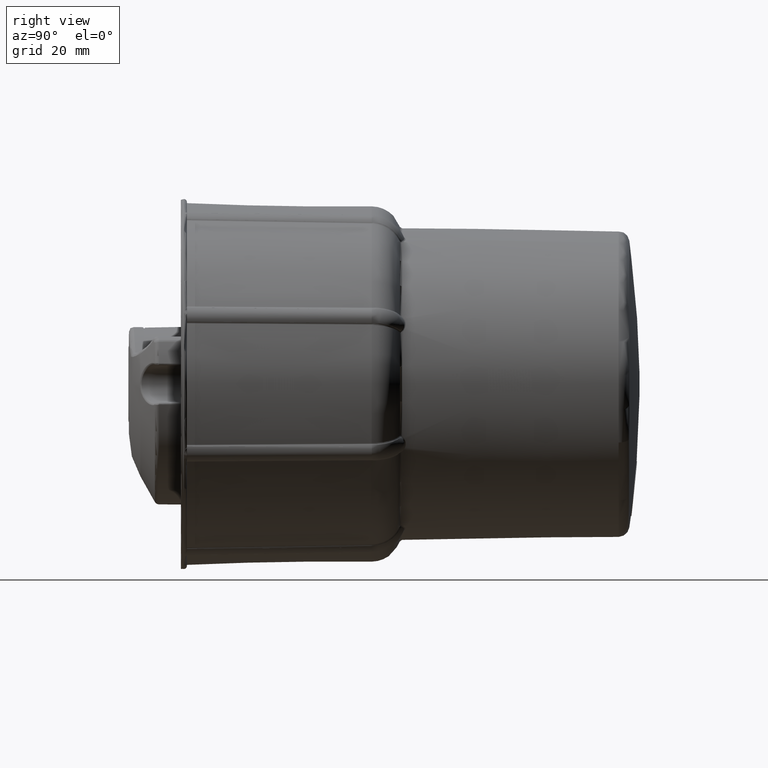
[diagram: clean part render]
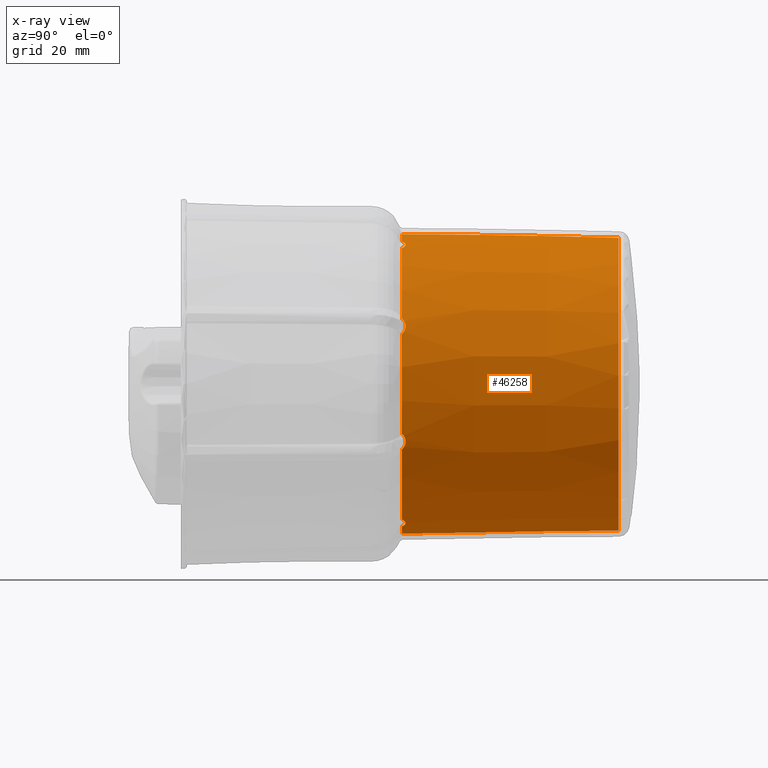
[diagram: x-ray — body ghosted, one internal face saturated and labeled with its STEP entity id]
A machine part, right view, then the same camera in x-ray: the body is ghosted and one INTERNAL B-rep face — a face not visible from any outside direction — is saturated and labeled: STEP entity #46258.
In plain terms, the highlighted conical surface has half-angle 1 deg.
Its self-contained STEP definition (entity closure, byte-faithful):
#308=CONICAL_SURFACE('',#50217,29.8448661211049,0.0174532925199435);
#5309=LINE('',#94508,#8653);
#8653=VECTOR('',#61009,29.8448661211049);
#11603=FACE_OUTER_BOUND('',#14287,.T.);
#14287=EDGE_LOOP('',(#41299,#41300,#41301,#41302,#41303,#41304,#41305,#41306,
#41307,#41308,#41309,#41310,#41311,#41312,#41313,#41314,#41315,#41316,#41317,
#41318,#41319));
#16032=CIRCLE('',#50218,30.2239014739771);
#16033=CIRCLE('',#50219,30.2239014739771);
#16034=CIRCLE('',#50220,30.2239014739771);
#16035=CIRCLE('',#50221,30.2239014739771);
#16036=CIRCLE('',#50222,29.4658307682327);
#16037=CIRCLE('',#50223,29.4658307682327);
#16038=CIRCLE('',#50224,30.2239014739771);
#16039=CIRCLE('',#50225,30.2239014739771);
#16040=CIRCLE('',#50226,30.2239014739771);
#16041=CIRCLE('',#50227,30.2239014739771);
#17552=B_SPLINE_CURVE_WITH_KNOTS('',3,(#94322,#94323,#94324,#94325,#94326,
#94327),.UNSPECIFIED.,.F.,.F.,(4,1,1,4),(0.00631704096053752,0.17305562028282,
0.284214673164341,0.395373726045862),.UNSPECIFIED.);
#17563=B_SPLINE_CURVE_WITH_KNOTS('',3,(#94478,#94479,#94480,#94481,#94482),
 .UNSPECIFIED.,.F.,.F.,(4,1,4),(0.00631704096053902,0.228635146723583,0.395373726045865),
 .UNSPECIFIED.);
#17564=B_SPLINE_CURVE_WITH_KNOTS('',3,(#94486,#94487,#94488,#94489,#94490),
 .UNSPECIFIED.,.F.,.F.,(4,1,4),(0.00631704096053734,0.228635146723583,0.395373726045868),
 .UNSPECIFIED.);
#17565=B_SPLINE_CURVE_WITH_KNOTS('',3,(#94494,#94495,#94496,#94497,#94498),
 .UNSPECIFIED.,.F.,.F.,(4,1,4),(0.006317040960538,0.228635146723582,0.395373726045865),
 .UNSPECIFIED.);
#17566=B_SPLINE_CURVE_WITH_KNOTS('',3,(#94502,#94503,#94504,#94505,#94506),
 .UNSPECIFIED.,.F.,.F.,(4,1,4),(0.201118664936219,0.228635146723581,0.395373726045865),
 .UNSPECIFIED.);
#17567=B_SPLINE_CURVE_WITH_KNOTS('',3,(#94513,#94514,#94515,#94516),
 .UNSPECIFIED.,.F.,.F.,(4,4),(0.00631704096053671,0.201118664936219),
 .UNSPECIFIED.);
#17568=B_SPLINE_CURVE_WITH_KNOTS('',3,(#94520,#94521,#94522,#94523,#94524),
 .UNSPECIFIED.,.F.,.F.,(4,1,4),(0.00631704096053866,0.228635146723584,0.395373726045868),
 .UNSPECIFIED.);
#17569=B_SPLINE_CURVE_WITH_KNOTS('',3,(#94528,#94529,#94530,#94531,#94532),
 .UNSPECIFIED.,.F.,.F.,(4,1,4),(0.00631704096053853,0.228635146723581,0.395373726045863),
 .UNSPECIFIED.);
#17570=B_SPLINE_CURVE_WITH_KNOTS('',3,(#94536,#94537,#94538,#94539,#94540),
 .UNSPECIFIED.,.F.,.F.,(4,1,4),(0.00631704096053801,0.228635146723583,0.395373726045867),
 .UNSPECIFIED.);
#21924=VERTEX_POINT('',#94279);
#21926=VERTEX_POINT('',#94320);
#21933=VERTEX_POINT('',#94475);
#21934=VERTEX_POINT('',#94477);
#21935=VERTEX_POINT('',#94483);
#21936=VERTEX_POINT('',#94485);
#21937=VERTEX_POINT('',#94491);
#21938=VERTEX_POINT('',#94493);
#21939=VERTEX_POINT('',#94499);
#21940=VERTEX_POINT('',#94501);
#21941=VERTEX_POINT('',#94507);
#21942=VERTEX_POINT('',#94509);
#21943=VERTEX_POINT('',#94512);
#21944=VERTEX_POINT('',#94517);
#21945=VERTEX_POINT('',#94519);
#21946=VERTEX_POINT('',#94525);
#21947=VERTEX_POINT('',#94527);
#21948=VERTEX_POINT('',#94533);
#21949=VERTEX_POINT('',#94535);
#28578=EDGE_CURVE('',#21926,#21924,#17552,.T.);
#28593=EDGE_CURVE('',#21926,#21933,#16032,.T.);
#28594=EDGE_CURVE('',#21934,#21933,#17563,.T.);
#28595=EDGE_CURVE('',#21934,#21935,#16033,.T.);
#28596=EDGE_CURVE('',#21936,#21935,#17564,.T.);
#28597=EDGE_CURVE('',#21936,#21937,#16034,.T.);
#28598=EDGE_CURVE('',#21938,#21937,#17565,.T.);
#28599=EDGE_CURVE('',#21938,#21939,#16035,.T.);
#28600=EDGE_CURVE('',#21940,#21939,#17566,.T.);
#28601=EDGE_CURVE('',#21940,#21941,#5309,.T.);
#28602=EDGE_CURVE('',#21942,#21941,#16036,.T.);
#28603=EDGE_CURVE('',#21941,#21942,#16037,.T.);
#28604=EDGE_CURVE('',#21943,#21940,#17567,.T.);
#28605=EDGE_CURVE('',#21943,#21944,#16038,.T.);
#28606=EDGE_CURVE('',#21945,#21944,#17568,.T.);
#28607=EDGE_CURVE('',#21945,#21946,#16039,.T.);
#28608=EDGE_CURVE('',#21947,#21946,#17569,.T.);
#28609=EDGE_CURVE('',#21947,#21948,#16040,.T.);
#28610=EDGE_CURVE('',#21949,#21948,#17570,.T.);
#28611=EDGE_CURVE('',#21949,#21924,#16041,.T.);
#41299=ORIENTED_EDGE('',*,*,#28578,.F.);
#41300=ORIENTED_EDGE('',*,*,#28593,.T.);
#41301=ORIENTED_EDGE('',*,*,#28594,.F.);
#41302=ORIENTED_EDGE('',*,*,#28595,.T.);
#41303=ORIENTED_EDGE('',*,*,#28596,.F.);
#41304=ORIENTED_EDGE('',*,*,#28597,.T.);
#41305=ORIENTED_EDGE('',*,*,#28598,.F.);
#41306=ORIENTED_EDGE('',*,*,#28599,.T.);
#41307=ORIENTED_EDGE('',*,*,#28600,.F.);
#41308=ORIENTED_EDGE('',*,*,#28601,.T.);
#41309=ORIENTED_EDGE('',*,*,#28602,.F.);
#41310=ORIENTED_EDGE('',*,*,#28603,.F.);
#41311=ORIENTED_EDGE('',*,*,#28601,.F.);
#41312=ORIENTED_EDGE('',*,*,#28604,.F.);
#41313=ORIENTED_EDGE('',*,*,#28605,.T.);
#41314=ORIENTED_EDGE('',*,*,#28606,.F.);
#41315=ORIENTED_EDGE('',*,*,#28607,.T.);
#41316=ORIENTED_EDGE('',*,*,#28608,.F.);
#41317=ORIENTED_EDGE('',*,*,#28609,.T.);
#41318=ORIENTED_EDGE('',*,*,#28610,.F.);
#41319=ORIENTED_EDGE('',*,*,#28611,.T.);
#46258=ADVANCED_FACE('',(#11603),#308,.F.);
#50217=AXIS2_PLACEMENT_3D('',#94474,#60999,#61000);
#50218=AXIS2_PLACEMENT_3D('',#94476,#61001,#61002);
#50219=AXIS2_PLACEMENT_3D('',#94484,#61003,#61004);
#50220=AXIS2_PLACEMENT_3D('',#94492,#61005,#61006);
#50221=AXIS2_PLACEMENT_3D('',#94500,#61007,#61008);
#50222=AXIS2_PLACEMENT_3D('',#94510,#61010,#61011);
#50223=AXIS2_PLACEMENT_3D('',#94511,#61012,#61013);
#50224=AXIS2_PLACEMENT_3D('',#94518,#61014,#61015);
#50225=AXIS2_PLACEMENT_3D('',#94526,#61016,#61017);
#50226=AXIS2_PLACEMENT_3D('',#94534,#61018,#61019);
#50227=AXIS2_PLACEMENT_3D('',#94541,#61020,#61021);
#60999=DIRECTION('center_axis',(6.12323399573676E-17,-1.,-3.29495923550177E-33));
#61000=DIRECTION('ref_axis',(-0.38268343236509,-2.34326020266315E-17,-0.923879532511287));
#61001=DIRECTION('center_axis',(6.12323399573676E-17,-1.,-3.29495923550177E-33));
#61002=DIRECTION('ref_axis',(-0.38268343236509,-2.34326020266315E-17,-0.923879532511287));
#61003=DIRECTION('center_axis',(6.12323399573676E-17,-1.,-3.29495923550177E-33));
#61004=DIRECTION('ref_axis',(-0.38268343236509,-2.34326020266315E-17,-0.923879532511287));
#61005=DIRECTION('center_axis',(6.12323399573676E-17,-1.,-3.29495923550177E-33));
#61006=DIRECTION('ref_axis',(-0.38268343236509,-2.34326020266315E-17,-0.923879532511287));
#61007=DIRECTION('center_axis',(6.12323399573676E-17,-1.,-3.29495923550177E-33));
#61008=DIRECTION('ref_axis',(-0.38268343236509,-2.34326020266315E-17,-0.923879532511287));
#61009=DIRECTION('',(-0.00667874679845039,0.999847695156391,-0.0161239211004747));
#61010=DIRECTION('center_axis',(6.12323399573676E-17,-1.,-3.29495923550177E-33));
#61011=DIRECTION('ref_axis',(-0.38268343236509,-2.34326020266315E-17,-0.923879532511287));
#61012=DIRECTION('center_axis',(6.12323399573676E-17,-1.,-3.29495923550177E-33));
#61013=DIRECTION('ref_axis',(-0.38268343236509,-2.34326020266315E-17,-0.923879532511287));
#61014=DIRECTION('center_axis',(6.12323399573676E-17,-1.,-3.29495923550177E-33));
#61015=DIRECTION('ref_axis',(-0.38268343236509,-2.34326020266315E-17,-0.923879532511287));
#61016=DIRECTION('center_axis',(6.12323399573676E-17,-1.,-3.29495923550177E-33));
#61017=DIRECTION('ref_axis',(-0.38268343236509,-2.34326020266315E-17,-0.923879532511287));
#61018=DIRECTION('center_axis',(6.12323399573676E-17,-1.,-3.29495923550177E-33));
#61019=DIRECTION('ref_axis',(-0.38268343236509,-2.34326020266315E-17,-0.923879532511287));
#61020=DIRECTION('center_axis',(6.12323399573676E-17,-1.,-3.29495923550177E-33));
#61021=DIRECTION('ref_axis',(-0.38268343236509,-2.34326020266315E-17,-0.923879532511287));
#94279=CARTESIAN_POINT('',(-13.0966338411169,39.0609263652046,-27.2389868082567));
#94320=CARTESIAN_POINT('',(-10.0001536849938,39.060926365202,-28.5215908845419));
#94322=CARTESIAN_POINT('Ctrl Pts',(-10.0001536849949,39.0609263652008,-28.5215908845415));
#94323=CARTESIAN_POINT('Ctrl Pts',(-10.3518593687972,39.4540881768022,-28.3910046415003));
#94324=CARTESIAN_POINT('Ctrl Pts',(-11.1407431693745,39.8829259777305,-28.0916161824178));
#94325=CARTESIAN_POINT('Ctrl Pts',(-12.3086976075922,39.7323165928973,-27.597576236553));
#94326=CARTESIAN_POINT('Ctrl Pts',(-12.8695466178011,39.322725998051,-27.3431009288314));
#94327=CARTESIAN_POINT('Ctrl Pts',(-13.0966338411169,39.0609263652045,-27.2389868082567));
#94474=CARTESIAN_POINT('Origin',(-4.54808392563414E-15,60.7758471879516,
2.44735888666659E-31));
#94475=CARTESIAN_POINT('',(10.0001536849982,39.0609263652045,-28.5215908845402));
#94476=CARTESIAN_POINT('Origin',(-3.21842851166837E-15,39.0609263652045,
1.73186109753559E-31));
#94477=CARTESIAN_POINT('',(13.0966338411213,39.060926365202,-27.2389868082547));
#94478=CARTESIAN_POINT('Ctrl Pts',(13.0966338411202,39.0609263652008,-27.2389868082552));
#94479=CARTESIAN_POINT('Ctrl Pts',(12.64192465181,39.5851421140027,-27.4474602162744));
#94480=CARTESIAN_POINT('Ctrl Pts',(11.4671962041018,40.0638494590778,-27.968982946748));
#94481=CARTESIAN_POINT('Ctrl Pts',(10.3514457593029,39.4536258144744,-28.3911582122625));
#94482=CARTESIAN_POINT('Ctrl Pts',(10.0001536849983,39.0609263652045,-28.5215908845402));
#94483=CARTESIAN_POINT('',(27.2389868082567,39.0609263652045,-13.0966338411169));
#94484=CARTESIAN_POINT('Origin',(-3.21842851166837E-15,39.0609263652045,
1.73186109753559E-31));
#94485=CARTESIAN_POINT('',(28.5215908845419,39.060926365202,-10.0001536849937));
#94486=CARTESIAN_POINT('Ctrl Pts',(28.5215908845415,39.0609263652008,-10.0001536849949));
#94487=CARTESIAN_POINT('Ctrl Pts',(28.3474758938199,39.5851421140027,-10.4690945967314));
#94488=CARTESIAN_POINT('Ctrl Pts',(27.8855897449214,40.0638506791066,-11.6685256277936));
#94489=CARTESIAN_POINT('Ctrl Pts',(27.3951579891187,39.4536258144743,-12.7560030061432));
#94490=CARTESIAN_POINT('Ctrl Pts',(27.2389868082567,39.0609263652045,-13.0966338411169));
#94491=CARTESIAN_POINT('',(28.5215908845402,39.0609263652045,10.0001536849983));
#94492=CARTESIAN_POINT('Origin',(-3.21842851166837E-15,39.0609263652045,
1.73186109753559E-31));
#94493=CARTESIAN_POINT('',(27.2389868082547,39.060926365202,13.0966338411213));
#94494=CARTESIAN_POINT('Ctrl Pts',(27.2389868082552,39.0609263652008,13.0966338411202));
#94495=CARTESIAN_POINT('Ctrl Pts',(27.4474602162744,39.5851421140027,12.64192465181));
#94496=CARTESIAN_POINT('Ctrl Pts',(27.968982946748,40.0638494590778,11.4671962041017));
#94497=CARTESIAN_POINT('Ctrl Pts',(28.3911582122625,39.4536258144744,10.3514457593029));
#94498=CARTESIAN_POINT('Ctrl Pts',(28.5215908845402,39.0609263652045,10.0001536849983));
#94499=CARTESIAN_POINT('',(13.0966338411169,39.0609263652045,27.2389868082567));
#94500=CARTESIAN_POINT('Origin',(-3.21842851166837E-15,39.0609263652045,
1.73186109753559E-31));
#94501=CARTESIAN_POINT('',(11.5612152454607,39.7913140461276,27.911217723757));
#94502=CARTESIAN_POINT('Ctrl Pts',(11.5611966791276,39.7909811746099,27.9111672873306));
#94503=CARTESIAN_POINT('Ctrl Pts',(11.6421435309719,39.7915244046396,27.8777844013901));
#94504=CARTESIAN_POINT('Ctrl Pts',(12.2130281834889,39.7583096122705,27.6400293776483));
#94505=CARTESIAN_POINT('Ctrl Pts',(12.7560030061432,39.4536258144743,27.3951579891187));
#94506=CARTESIAN_POINT('Ctrl Pts',(13.0966338411169,39.0609263652045,27.2389868082567));
#94507=CARTESIAN_POINT('',(11.2760852558762,82.4907680106987,27.2228779552116));
#94508=CARTESIAN_POINT('',(11.421135805701,60.7758471879516,27.5730609598283));
#94509=CARTESIAN_POINT('',(27.2228779552116,82.4907680106987,-11.2760852558762));
#94510=CARTESIAN_POINT('Origin',(-5.87773933959991E-15,82.4907680106987,
3.1628566757976E-31));
#94511=CARTESIAN_POINT('Origin',(-5.87773933959991E-15,82.4907680106987,
3.1628566757976E-31));
#94512=CARTESIAN_POINT('',(10.0001536849937,39.060926365202,28.5215908845419));
#94513=CARTESIAN_POINT('Ctrl Pts',(10.0001536849949,39.0609263652008,28.5215908845415));
#94514=CARTESIAN_POINT('Ctrl Pts',(10.4110534218443,39.5202595303056,28.3690262392344));
#94515=CARTESIAN_POINT('Ctrl Pts',(10.9881372917813,39.7871354034535,28.1474998404694));
#94516=CARTESIAN_POINT('Ctrl Pts',(11.5611966791276,39.7909811746099,27.9111672873306));
#94517=CARTESIAN_POINT('',(-10.0001536849982,39.0609263652045,28.5215908845402));
#94518=CARTESIAN_POINT('Origin',(-3.21842851166837E-15,39.0609263652045,
1.73186109753559E-31));
#94519=CARTESIAN_POINT('',(-13.0966338411213,39.060926365202,27.2389868082547));
#94520=CARTESIAN_POINT('Ctrl Pts',(-13.0966338411202,39.0609263652008,27.2389868082552));
#94521=CARTESIAN_POINT('Ctrl Pts',(-12.64192465181,39.5851421140027,27.4474602162744));
#94522=CARTESIAN_POINT('Ctrl Pts',(-11.4671962041017,40.0638494590778,27.968982946748));
#94523=CARTESIAN_POINT('Ctrl Pts',(-10.3514457593029,39.4536258144744,28.3911582122625));
#94524=CARTESIAN_POINT('Ctrl Pts',(-10.0001536849982,39.0609263652045,28.5215908845402));
#94525=CARTESIAN_POINT('',(-27.2389868082567,39.0609263652045,13.0966338411169));
#94526=CARTESIAN_POINT('Origin',(-3.21842851166837E-15,39.0609263652045,
1.73186109753559E-31));
#94527=CARTESIAN_POINT('',(-28.5215908845419,39.060926365202,10.0001536849938));
#94528=CARTESIAN_POINT('Ctrl Pts',(-28.5215908845415,39.0609263652008,10.0001536849949));
#94529=CARTESIAN_POINT('Ctrl Pts',(-28.3474758938199,39.5851421140027,10.4690945967314));
#94530=CARTESIAN_POINT('Ctrl Pts',(-27.8855897449214,40.0638506791066,11.6685256277935));
#94531=CARTESIAN_POINT('Ctrl Pts',(-27.3951579891188,39.4536258144744,12.7560030061432));
#94532=CARTESIAN_POINT('Ctrl Pts',(-27.2389868082567,39.0609263652045,13.0966338411169));
#94533=CARTESIAN_POINT('',(-28.5215908845402,39.0609263652045,-10.0001536849982));
#94534=CARTESIAN_POINT('Origin',(-3.21842851166837E-15,39.0609263652045,
1.73186109753559E-31));
#94535=CARTESIAN_POINT('',(-27.2389868082547,39.060926365202,-13.0966338411213));
#94536=CARTESIAN_POINT('Ctrl Pts',(-27.2389868082552,39.0609263652008,-13.0966338411202));
#94537=CARTESIAN_POINT('Ctrl Pts',(-27.4474602162744,39.5851421140027,-12.64192465181));
#94538=CARTESIAN_POINT('Ctrl Pts',(-27.968982946748,40.0638494590778,-11.4671962041017));
#94539=CARTESIAN_POINT('Ctrl Pts',(-28.3911582122625,39.4536258144744,-10.3514457593029));
#94540=CARTESIAN_POINT('Ctrl Pts',(-28.5215908845402,39.0609263652045,-10.0001536849982));
#94541=CARTESIAN_POINT('Origin',(-3.21842851166837E-15,39.0609263652045,
1.73186109753559E-31));